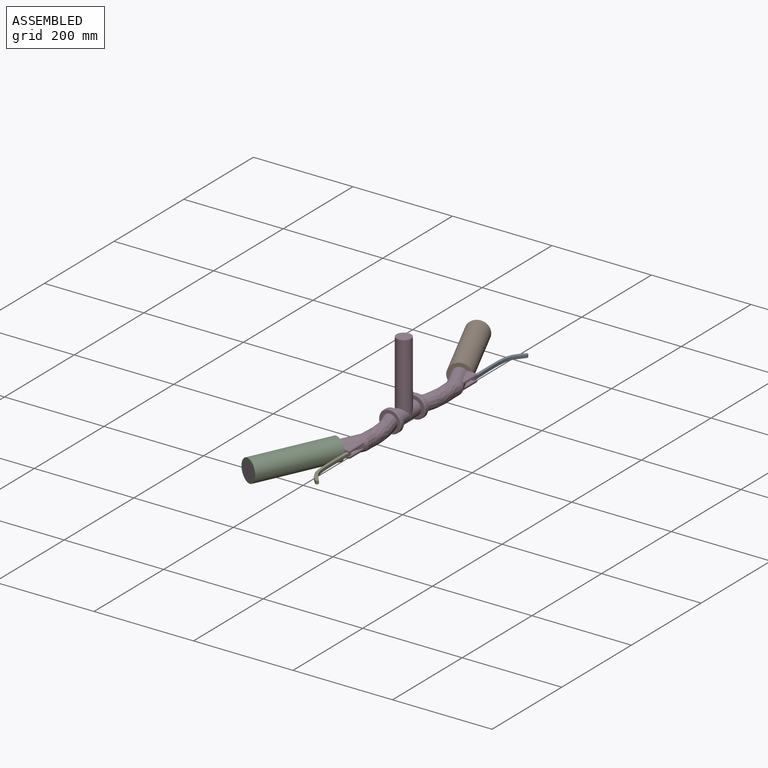
[diagram: assembled view]
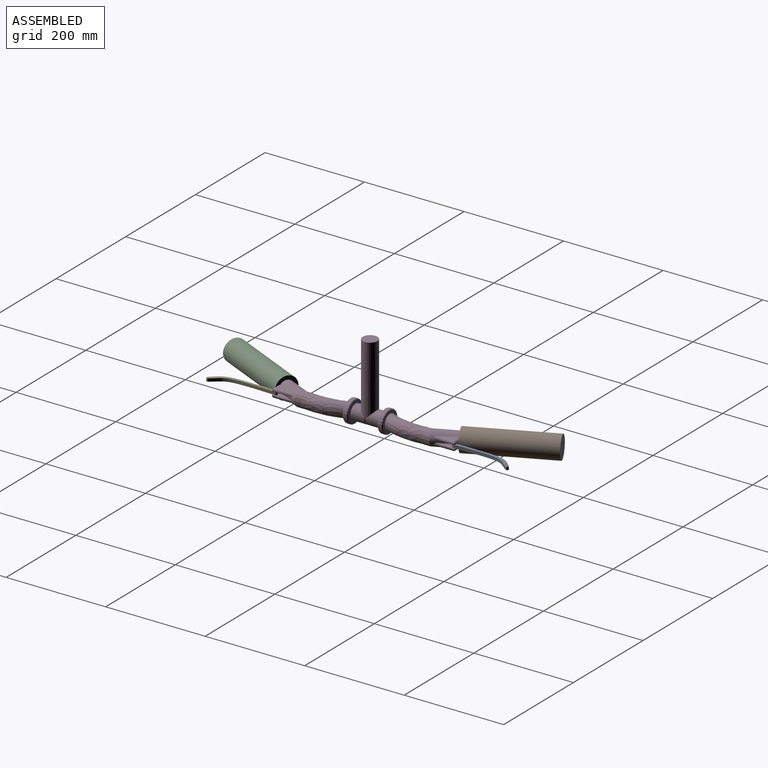
[diagram: assembled view, second angle]
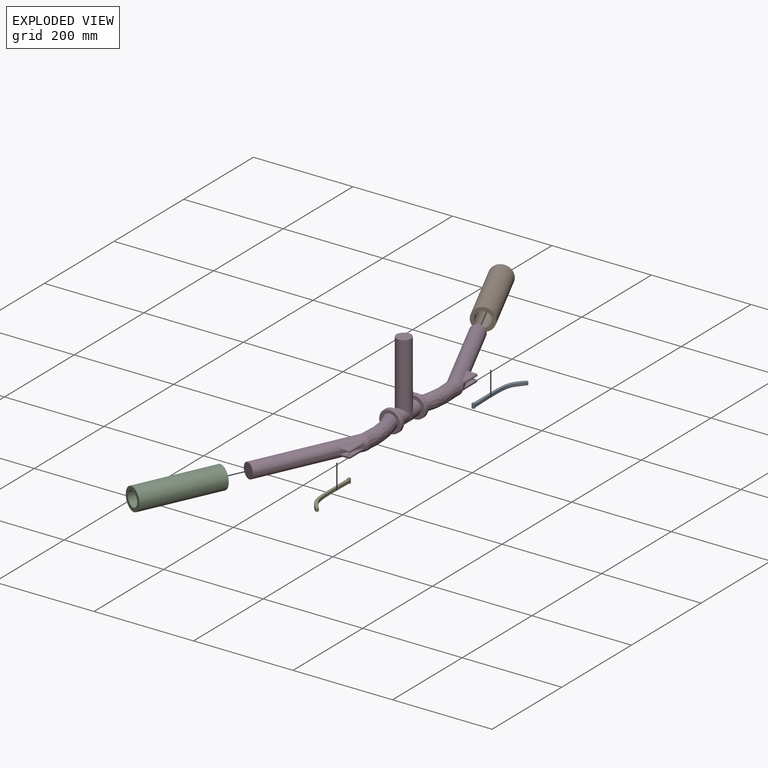
[diagram: exploded view]
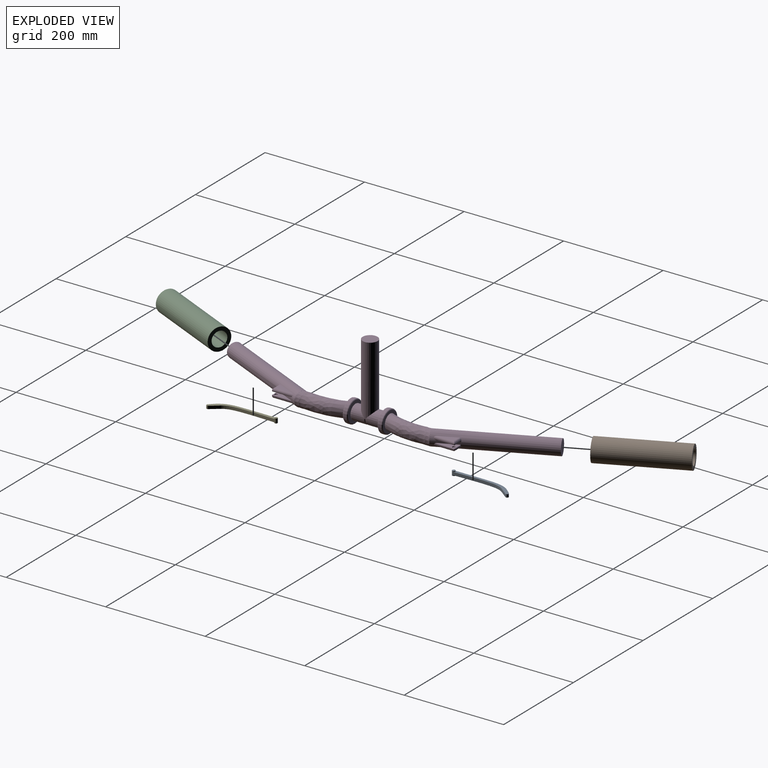
[diagram: exploded view, second angle]
ASSEMBLY  parts=5 mates=4
PART A: 10 faces, bbox 127.9x27.3x9 mm
  f0: cylinder r=3mm len=9mm, axis (0,0,-1), area 113.1mm2, adj f1,f2,f3,f7,f8,f9
  f1: plane 6x6mm, normal (0,0,1), area 28.3mm2, adj f0
  f2: plane 6x6mm, normal (0,0,-1), area 28.3mm2, adj f0
  f3: plane 7.29x6mm, normal (0,-1,0), area 43.8mm2, adj f0,f4,f8,f9
  f4: extruded ~116.71x21.95mm, area 738.4mm2, adj f3,f5,f8,f9
  f5: cylinder r=3mm len=6mm, axis (0,0,-1), area 54.4mm2, adj f4,f6,f8,f9
  f6: extruded ~115.79x21.35mm, area 730.3mm2, adj f5,f7,f8,f9
  f7: plane 6x4.27mm, normal (0,1,0), area 25.6mm2, adj f0,f6,f8,f9
  f8: plane 124.89x27.33mm, normal (0,0,1), area 731.6mm2, adj f0,f3,f4,f5,f6,f7
  f9: plane 124.89x27.33mm, normal (0,0,-1), area 731.6mm2, adj f0,f3,f4,f5,f6,f7
PART B: 4 faces, bbox 45x170x45 mm
  f0: cylinder r=15mm len=170mm, axis (0,1,0), area 16022.1mm2, adj f2,f3
  f1: cylinder r=22.5mm len=170mm, axis (0,1,0), area 24033.2mm2, adj f2,f3
  f2: plane 45x45mm, normal (0,-1,0), area 883.6mm2, adj f0,f1
  f3: plane 45x45mm, normal (0,1,0), area 883.6mm2, adj f0,f1
PART C: same geometry as B
PART D: 100 faces, bbox 134.8x671.2x164.4 mm
  f0: cylinder r=15mm len=30mm, axis (0,1,0), area 2090.7mm2, adj f1,f6,f97
  f1: torus R=13mm, axis (0,-1,0), area 142mm2, adj f0,f3,f96,f97,f99
  f2: cylinder r=15mm len=30mm, axis (0,-1,0), area 2090.7mm2, adj f3,f17,f97
  f3: torus R=13mm, axis (0,1,0), area 142mm2, adj f1,f2,f96,f97,f99
  f4: cylinder r=15mm len=212.22mm, axis (0.42,0.91,0), area 20152mm2, adj f12,f13,f14,f70,f71,f72,f73,f74
  f5: cylinder r=15mm len=212.22mm, axis (0.42,-0.91,0), area 20003.2mm2, adj f23,f24,f25,f47,f48,f50,f51,f53
  f6: torus R=13mm, axis (0,-1,0), area 281.7mm2, adj f0,f9
  f7: cylinder r=22.5mm len=45mm, axis (0,1,0), area 848.2mm2, adj f15,f16
  f8: plane 41x41mm, normal (0,-1,0), area 613.4mm2, adj f10,f16
  f9: plane 41x41mm, normal (0,1,0), area 789.3mm2, adj f6,f15
  f10: bspline ~93.07x69.17mm, area 7346.3mm2, adj f8,f11
  f11: bspline ~54.49x34.96mm, area 825.2mm2, adj f10,f13,f14
  f12: plane 30x27.22mm, normal (-0.42,-0.91,0), area 706.9mm2, adj f4
  f13: bspline ~30x13.61mm, area 20.4mm2, adj f4,f11
  f14: bspline ~30x13.8mm, area 23.8mm2, adj f4,f11
  f15: torus R=20.5mm, axis (0,-1,0), area 429.8mm2, adj f7,f9
  f16: torus R=20.5mm, axis (0,-1,0), area 429.8mm2, adj f7,f8
  f17: torus R=13mm, axis (0,1,0), area 281.7mm2, adj f2,f20
  f18: cylinder r=22.5mm len=45mm, axis (0,-1,0), area 848.2mm2, adj f26,f27
  f19: plane 41x41mm, normal (0,1,0), area 613.4mm2, adj f21,f27
  f20: plane 41x41mm, normal (0,-1,0), area 789.3mm2, adj f17,f26
  f21: bspline ~93.07x69.17mm, area 7346.3mm2, adj f19,f22
  f22: bspline ~54.49x34.96mm, area 825.2mm2, adj f21,f24,f25
  f23: plane 30x27.22mm, normal (-0.42,0.91,0), area 706.9mm2, adj f5
  f24: bspline ~30x13.61mm, area 26.6mm2, adj f5,f22
  f25: bspline ~30x13.8mm, area 26.6mm2, adj f5,f22
  f26: torus R=20.5mm, axis (0,1,0), area 429.8mm2, adj f18,f20
  f27: torus R=20.5mm, axis (0,1,0), area 429.8mm2, adj f18,f19
  f28: plane 31.98x14.82mm, normal (0,0,-1), area 236.9mm2, adj f42,f43,f51
  f29: plane 33.4x15.48mm, normal (0,0,1), area 230.2mm2, adj f38,f46,f52,f53
  f30: plane 17.15x1mm, normal (0,1,0), area 17mm2, adj f43,f45,f52,f56
  f31: plane 39.33x1mm, normal (1,0,0), area 39mm2, adj f42,f45,f46,f47
  f32: plane 31.98x14.82mm, normal (0,0,1), area 236.9mm2, adj f40,f41,f64
  f33: plane 33.4x15.48mm, normal (0,0,-1), area 230.2mm2, adj f37,f59,f65,f66
  f34: plane 39.33x1mm, normal (1,0,0), area 39mm2, adj f40,f58,f59,f60
  f35: plane 17.15x1mm, normal (0,1,0), area 17mm2, adj f41,f60,f66,f69
  f36: plane 6x6mm, normal (0,0,-1), area 28.3mm2, adj f37
  f37: cylinder r=3mm len=6mm, axis (0,0,1), area 28.3mm2, adj f33,f36
  f38: cylinder r=3mm len=6mm, axis (0,0,1), area 28.3mm2, adj f29,f39
  f39: plane 6x6mm, normal (0,0,1), area 28.3mm2, adj f38
  f40: cylinder r=4mm len=40.42mm, axis (0,1,0), area 239mm2, adj f32,f34,f57,f61
  f41: cylinder r=4mm len=18.42mm, axis (1,0,0), area 106.4mm2, adj f32,f35,f57,f67
  f42: cylinder r=4mm len=40.42mm, axis (0,-1,0), area 239mm2, adj f28,f31,f44,f48
  f43: cylinder r=4mm len=18.42mm, axis (1,0,0), area 106.4mm2, adj f28,f30,f44,f54
  f44: bspline ~4.65x4mm, area 6.8mm2, adj f42,f43,f45
  f45: cylinder r=1mm len=1mm, axis (0,0,-1), area 1.6mm2, adj f30,f31,f44,f49
  f46: cylinder r=1mm len=38.63mm, axis (0,1,0), area 56.6mm2, adj f29,f31,f49,f50
  f47: bspline ~1.25x1.1mm, area 0.6mm2, adj f5,f31,f48,f50
  f48: bspline ~7.37x5.53mm, area 5.7mm2, adj f5,f42,f47,f51
  f49: sphere r=1mm, area 1.6mm2, adj f45,f46,f52
  f50: bspline ~6.04x2.27mm, area 6.4mm2, adj f5,f46,f47,f53
  f51: cylinder r=1mm len=32.31mm, axis (0.42,-0.91,0), area 31.6mm2, adj f5,f28,f48,f54
  f52: cylinder r=1mm len=16.83mm, axis (-1,0,0), area 25.4mm2, adj f29,f30,f49,f55
  f53: cylinder r=1mm len=33.82mm, axis (0.42,-0.91,0), area 62.4mm2, adj f5,f29,f50,f55
  f54: bspline ~5.8x5.09mm, area 6.7mm2, adj f5,f43,f51,f56
  f55: bspline ~2.52x2.48mm, area 3.5mm2, adj f5,f52,f53,f56
  f56: bspline ~1.25x1.19mm, area 1.2mm2, adj f5,f30,f54,f55
  f57: bspline ~4.65x4mm, area 6.8mm2, adj f40,f41,f60
  f58: bspline ~1.25x1.1mm, area 0.6mm2, adj f5,f34,f61,f62
  f59: cylinder r=1mm len=38.63mm, axis (0,-1,0), area 56.6mm2, adj f33,f34,f62,f63
  f60: cylinder r=1mm len=1mm, axis (0,0,-1), area 1.6mm2, adj f34,f35,f57,f63
  f61: bspline ~7.37x5.53mm, area 5.7mm2, adj f5,f40,f58,f64
  f62: bspline ~6.48x2.47mm, area 6.4mm2, adj f5,f58,f59,f65
  f63: sphere r=1mm, area 1.6mm2, adj f59,f60,f66
  f64: cylinder r=1mm len=32.31mm, axis (0.42,-0.91,0), area 31.6mm2, adj f5,f32,f61,f67
  f65: cylinder r=1mm len=33.82mm, axis (0.42,-0.91,0), area 62.4mm2, adj f5,f33,f62,f68
  f66: cylinder r=1mm len=16.83mm, axis (-1,0,0), area 25.4mm2, adj f33,f35,f63,f68
  f67: bspline ~5.8x5.09mm, area 6.7mm2, adj f5,f41,f64,f69
  f68: bspline ~2.41x2.34mm, area 3.5mm2, adj f5,f65,f66,f69
  f69: bspline ~1.25x1.19mm, area 1.2mm2, adj f5,f35,f67,f68
  f70: plane 33.14x15.36mm, normal (0,0,-1), area 254.5mm2, adj f4,f84,f85
  f71: plane 36.2x16.78mm, normal (0,0,1), area 275.4mm2, adj f4,f80,f86,f87
  f72: plane 39.72x1.04mm, normal (1,0,0), area 39.3mm2, adj f4,f84,f87,f90
  f73: plane 17.86x1.01mm, normal (0,-1,0), area 17.7mm2, adj f4,f85,f86,f90
  f74: plane 33.14x15.36mm, normal (0,0,1), area 254.5mm2, adj f4,f82,f83
  f75: plane 36.2x16.78mm, normal (0,0,-1), area 275.4mm2, adj f4,f79,f91,f92
  f76: plane 17.86x1.01mm, normal (0,-1,0), area 17.7mm2, adj f4,f83,f92,f95
  f77: plane 39.72x1.04mm, normal (1,0,0), area 39.3mm2, adj f4,f82,f91,f95
  f78: plane 6x6mm, normal (0,0,-1), area 28.3mm2, adj f79
  f79: cylinder r=3mm len=6mm, axis (0,0,1), area 28.3mm2, adj f75,f78
  f80: cylinder r=3mm len=6mm, axis (0,0,1), area 28.3mm2, adj f71,f81
  f81: plane 6x6mm, normal (0,0,1), area 28.3mm2, adj f80
  f82: cylinder r=4mm len=40.61mm, axis (0,1,0), area 241.5mm2, adj f4,f74,f77,f93
  f83: cylinder r=4mm len=18.86mm, axis (1,0,0), area 109.8mm2, adj f4,f74,f76,f93
  f84: cylinder r=4mm len=40.61mm, axis (0,-1,0), area 241.5mm2, adj f4,f70,f72,f88
  f85: cylinder r=4mm len=18.86mm, axis (1,0,0), area 109.8mm2, adj f4,f70,f73,f88
  f86: cylinder r=1mm len=17.5mm, axis (-1,0,0), area 26.9mm2, adj f4,f71,f73,f89
  f87: cylinder r=1mm len=38.93mm, axis (0,1,0), area 59mm2, adj f4,f71,f72,f89
  f88: bspline ~4.65x4mm, area 6.8mm2, adj f84,f85,f90
  f89: sphere r=1mm, area 1.6mm2, adj f86,f87,f90
  f90: cylinder r=1mm len=1mm, axis (0,0,1), area 1.6mm2, adj f72,f73,f88,f89
  f91: cylinder r=1mm len=38.93mm, axis (0,-1,0), area 59mm2, adj f4,f75,f77,f94
  f92: cylinder r=1mm len=17.5mm, axis (-1,0,0), area 26.9mm2, adj f4,f75,f76,f94
  f93: bspline ~4.65x4mm, area 6.8mm2, adj f82,f83,f95
  f94: sphere r=1mm, area 1.6mm2, adj f91,f92,f95
  f95: cylinder r=1mm len=1mm, axis (0,0,1), area 1.6mm2, adj f76,f77,f93,f94
  f96: plane 2.94x2mm, normal (0,0,-1), area 1.6mm2, adj f1,f3,f97
  f97: cylinder r=15mm len=140mm, axis (0,0,-1), area 12300.6mm2, adj f0,f1,f2,f3,f96,f98,f99
  f98: plane 30x30mm, normal (0,0,1), area 706.9mm2, adj f97
  f99: plane 2.94x2mm, normal (0,0,-1), area 1.6mm2, adj f1,f3,f97
PART E: same geometry as A
PLACE A rot(axis=(0.71,0.71,0),180deg) t=(-129.62,188.85,11.99)mm
PLACE B rot(axis=(0.21,-0.95,0.21),92.7deg) t=(-226.52,339.51,11.99)mm
PLACE C rot(axis=(0,0,-1),24.9deg) t=(-155.05,-164.78,11.99)mm
PLACE D rot(axis=(-0.69,-0.18,0.7),0deg) t=(-144.57,10.24,11.99)mm
PLACE E rot(axis=(0,0,-1),90deg) t=(-129.62,-168.36,11.99)mm
MATE fastened B.f1 <-> D.f5  axis (-0.42,0.91,0) through (-226.52,339.51,11.99)mm
MATE revolute A.f0 <-> D.f37  axis (0,0,1) through (-129.62,188.85,16.49)mm
MATE fastened D.f4 <-> C.f1  axis (-0.42,-0.91,0) through (-226.52,-319.03,11.99)mm
MATE revolute E.f0 <-> D.f79  axis (0,0,-1) through (-129.62,-168.36,7.49)mm
